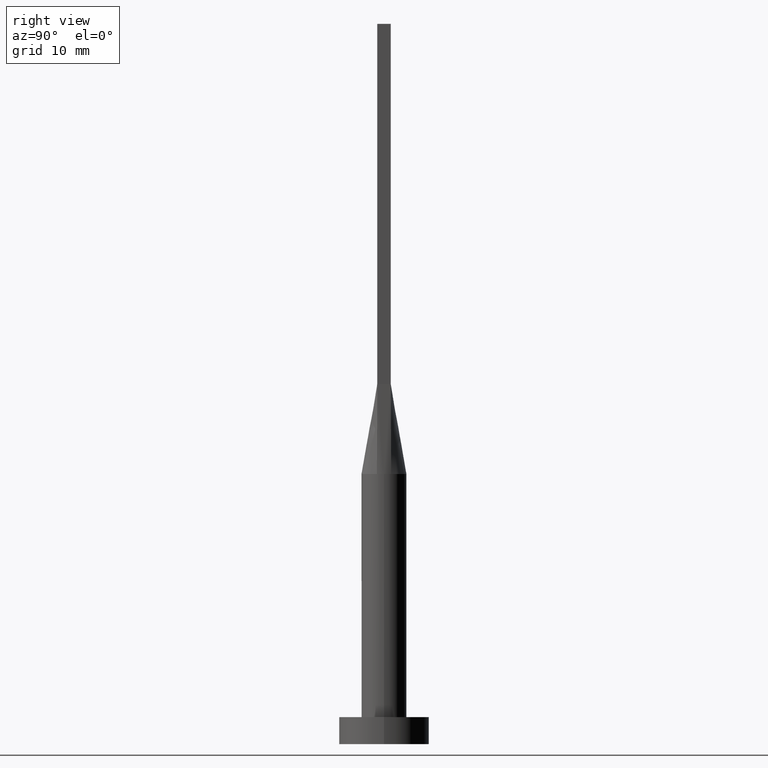
[diagram: clean part render]
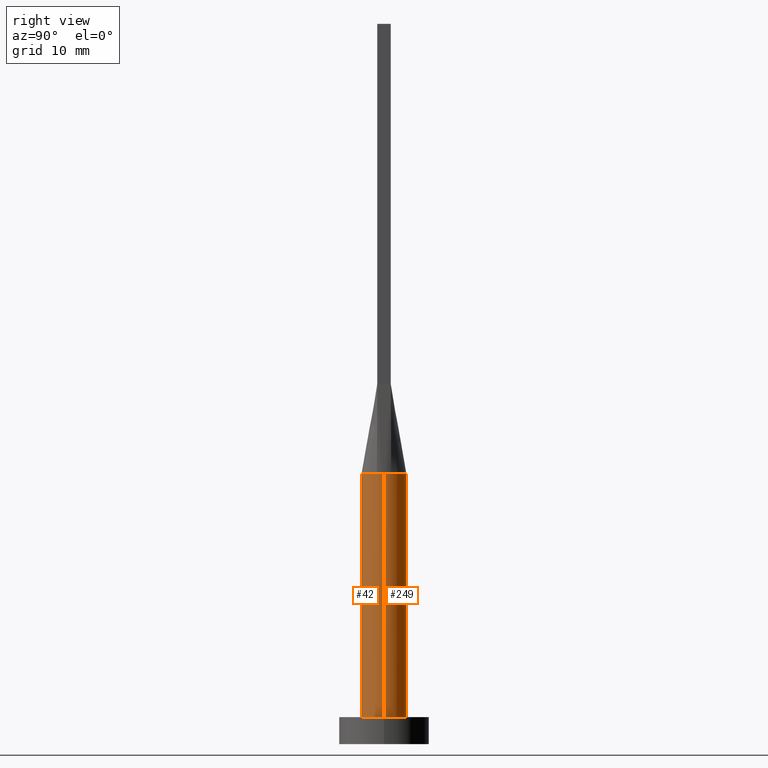
[diagram: same view with one multi-face feature highlighted, each face labeled with its STEP entity id]
A machine part, right view. The highlighted faces form ONE feature: a constant-radius fillet chain: 2 tangent blend faces with common blend radius 2.5 mm. The faces share edges in the B-rep.
Their STEP definitions:
[1] entity #249 (Cylinder):
#12 = CARTESIAN_POINT ( 'NONE',  ( -2.309208245126284975, 0.9780694150420951027, 30.00000000000000355 ) ) ;
#20 = ORIENTED_EDGE ( 'NONE', *, *, #420, .F. ) ;
#26 = AXIS2_PLACEMENT_3D ( 'NONE', #175, #49, #135 ) ;
#33 = VERTEX_POINT ( 'NONE', #131 ) ;
#34 = CARTESIAN_POINT ( 'NONE',  ( -2.500000000000000000, 0.000000000000000000, 3.000000000000000000 ) ) ;
#35 = CARTESIAN_POINT ( 'NONE',  ( 0.6000386972366480443, 2.444291348568451649, 29.99999999999999645 ) ) ;
#38 = VECTOR ( 'NONE', #292, 1000.000000000000000 ) ;
#39 = CARTESIAN_POINT ( 'NONE',  ( -1.799471046981195199, 1.755719709239274229, 30.00000000000001066 ) ) ;
#48 = EDGE_LOOP ( 'NONE', ( #196, #247, #120, #404, #20, #264 ) ) ;
#49 = DIRECTION ( 'NONE',  ( 0.000000000000000000, 0.000000000000000000, 1.000000000000000000 ) ) ;
#51 = EDGE_CURVE ( 'NONE', #97, #438, #396, .T. ) ;
#64 = CIRCLE ( 'NONE', #203, 2.500000000000000000 ) ;
#81 = CARTESIAN_POINT ( 'NONE',  ( 2.309208245126284975, 0.9780694150420948807, 29.99999999999999645 ) ) ;
#87 = DIRECTION ( 'NONE',  ( -0.000000000000000000, -0.000000000000000000, -1.000000000000000000 ) ) ;
#88 = EDGE_CURVE ( 'NONE', #579, #183, #468, .T. ) ;
#92 = CARTESIAN_POINT ( 'NONE',  ( 0.000000000000000000, 0.000000000000000000, 30.00000000000000000 ) ) ;
#97 = VERTEX_POINT ( 'NONE', #265 ) ;
#99 = DIRECTION ( 'NONE',  ( -1.000000000000000000, 0.000000000000000000, 0.000000000000000000 ) ) ;
#110 = AXIS2_PLACEMENT_3D ( 'NONE', #294, #245, #398 ) ;
#120 = ORIENTED_EDGE ( 'NONE', *, *, #220, .T. ) ;
#123 = CARTESIAN_POINT ( 'NONE',  ( 1.799471046981194977, 1.755719709239274007, 30.00000000000000355 ) ) ;
#126 = CARTESIAN_POINT ( 'NONE',  ( -0.3003163416900526128, 2.499999999999999112, 29.99999999999999645 ) ) ;
#131 = CARTESIAN_POINT ( 'NONE',  ( 2.500000000000000000, 3.061616997868383141E-16, 3.000000000000000000 ) ) ;
#135 = DIRECTION ( 'NONE',  ( 1.000000000000000000, 0.000000000000000000, 0.000000000000000000 ) ) ;
#150 = CARTESIAN_POINT ( 'NONE',  ( 2.499999999999999556, 3.110810548879990207E-17, 30.00000000000000000 ) ) ;
#159 = LINE ( 'NONE', #525, #38 ) ;
#167 = CARTESIAN_POINT ( 'NONE',  ( -1.390086206340438890, 2.094828891646495883, 30.00000000000000355 ) ) ;
#175 = CARTESIAN_POINT ( 'NONE',  ( 0.000000000000000000, 0.000000000000000000, 3.000000000000000000 ) ) ;
#183 = VERTEX_POINT ( 'NONE', #184 ) ;
#184 = CARTESIAN_POINT ( 'NONE',  ( -2.371795432964766359, 0.7905989074952441964, 30.00000000000000000 ) ) ;
#196 = ORIENTED_EDGE ( 'NONE', *, *, #375, .F. ) ;
#203 = AXIS2_PLACEMENT_3D ( 'NONE', #92, #402, #407 ) ;
#207 = CARTESIAN_POINT ( 'NONE',  ( -0.6000386972366482663, 2.444291348568452094, 30.00000000000000000 ) ) ;
#213 = CIRCLE ( 'NONE', #110, 2.500000000000000000 ) ;
#220 = EDGE_CURVE ( 'NONE', #33, #438, #439, .T. ) ;
#245 = DIRECTION ( 'NONE',  ( 0.000000000000000000, 0.000000000000000000, 1.000000000000000000 ) ) ;
#246 = CARTESIAN_POINT ( 'NONE',  ( 1.964343640889990361, 1.563766543189047287, 29.99999999999998934 ) ) ;
#247 = ORIENTED_EDGE ( 'NONE', *, *, #545, .T. ) ;
#249 = ADVANCED_FACE ( 'NONE', ( #504 ), #273, .T. ) ;
#254 = CARTESIAN_POINT ( 'NONE',  ( 2.218933079238281980, 1.174882007252000315, 29.99999999999999289 ) ) ;
#262 = CARTESIAN_POINT ( 'NONE',  ( -1.964343640889990805, 1.563766543189048175, 30.00000000000000000 ) ) ;
#264 = ORIENTED_EDGE ( 'NONE', *, *, #88, .F. ) ;
#265 = CARTESIAN_POINT ( 'NONE',  ( -2.500000000000000444, -1.570839010700814298E-16, 30.00000000000000000 ) ) ;
#273 = CYLINDRICAL_SURFACE ( 'NONE', #392, 2.500000000000000000 ) ;
#292 = DIRECTION ( 'NONE',  ( -0.000000000000000000, -0.000000000000000000, -1.000000000000000000 ) ) ;
#294 = CARTESIAN_POINT ( 'NONE',  ( 0.000000000000000000, 0.000000000000000000, 30.00000000000000000 ) ) ;
#309 = CARTESIAN_POINT ( 'NONE',  ( -2.500000000000000000, 0.000000000000000000, 30.00000000000000000 ) ) ;
#318 = CARTESIAN_POINT ( 'NONE',  ( -2.218933079238281536, 1.174882007251999871, 29.99999999999999645 ) ) ;
#328 = VERTEX_POINT ( 'NONE', #150 ) ;
#345 = VECTOR ( 'NONE', #87, 1000.000000000000000 ) ;
#350 = CARTESIAN_POINT ( 'NONE',  ( 1.390086206340439112, 2.094828891646494995, 30.00000000000000355 ) ) ;
#351 = CARTESIAN_POINT ( 'NONE',  ( 2.371772892450305648, 0.7905912578404317159, 30.00000000000000000 ) ) ;
#357 = CARTESIAN_POINT ( 'NONE',  ( 1.145194483530141749, 2.241235424885160921, 30.00000000000000355 ) ) ;
#375 = EDGE_CURVE ( 'NONE', #328, #579, #64, .T. ) ;
#392 = AXIS2_PLACEMENT_3D ( 'NONE', #465, #551, #99 ) ;
#396 = LINE ( 'NONE', #309, #345 ) ;
#398 = DIRECTION ( 'NONE',  ( 1.000000000000000000, 0.000000000000000000, 0.000000000000000000 ) ) ;
#400 = CARTESIAN_POINT ( 'NONE',  ( -1.145194483530141527, 2.241235424885160921, 29.99999999999999645 ) ) ;
#402 = DIRECTION ( 'NONE',  ( 0.000000000000000000, 0.000000000000000000, 1.000000000000000000 ) ) ;
#404 = ORIENTED_EDGE ( 'NONE', *, *, #51, .F. ) ;
#407 = DIRECTION ( 'NONE',  ( 1.000000000000000000, 0.000000000000000000, 0.000000000000000000 ) ) ;
#413 = CARTESIAN_POINT ( 'NONE',  ( -2.371795432964766359, 0.7905989074952441964, 30.00000000000000000 ) ) ;
#420 = EDGE_CURVE ( 'NONE', #183, #97, #213, .T. ) ;
#438 = VERTEX_POINT ( 'NONE', #34 ) ;
#439 = CIRCLE ( 'NONE', #26, 2.500000000000000000 ) ;
#452 = CARTESIAN_POINT ( 'NONE',  ( 0.3003163416900527238, 2.499999999999999556, 30.00000000000000355 ) ) ;
#465 = CARTESIAN_POINT ( 'NONE',  ( 0.000000000000000000, 0.000000000000000000, 30.00000000000000000 ) ) ;
#468 = B_SPLINE_CURVE_WITH_KNOTS ( 'NONE', 3,
 ( #497, #81, #254, #246, #123, #350, #357, #35, #452, #126, #207, #400, #167, #39, #262, #318, #12, #413 ),
 .UNSPECIFIED., .F., .F.,
 ( 4, 2, 2, 2, 2, 2, 2, 2, 4 ),
 ( 0.000000000000000000, 0.1250000000000000000, 0.2500000000000000000, 0.3750000000000000000, 0.5000000000000000000, 0.6250000000000000000, 0.7500000000000000000, 0.8750000000000000000, 1.000000000000000000 ),
 .UNSPECIFIED. ) ;
#497 = CARTESIAN_POINT ( 'NONE',  ( 2.371772892450305648, 0.7905912578404317159, 30.00000000000000000 ) ) ;
#504 = FACE_OUTER_BOUND ( 'NONE', #48, .T. ) ;
#525 = CARTESIAN_POINT ( 'NONE',  ( 2.500000000000000000, 3.061616997868383141E-16, 30.00000000000000000 ) ) ;
#545 = EDGE_CURVE ( 'NONE', #328, #33, #159, .T. ) ;
#551 = DIRECTION ( 'NONE',  ( -0.000000000000000000, -0.000000000000000000, -1.000000000000000000 ) ) ;
#579 = VERTEX_POINT ( 'NONE', #351 ) ;
[2] entity #42 (Cylinder):
#3 = CARTESIAN_POINT ( 'NONE',  ( 2.371798206859841329, -0.7905998626979697796, 30.00000000000000000 ) ) ;
#27 = CARTESIAN_POINT ( 'NONE',  ( 0.000000000000000000, 0.000000000000000000, 30.00000000000000000 ) ) ;
#31 = DIRECTION ( 'NONE',  ( -0.000000000000000000, -0.000000000000000000, -1.000000000000000000 ) ) ;
#33 = VERTEX_POINT ( 'NONE', #131 ) ;
#34 = CARTESIAN_POINT ( 'NONE',  ( -2.500000000000000000, 0.000000000000000000, 3.000000000000000000 ) ) ;
#38 = VECTOR ( 'NONE', #292, 1000.000000000000000 ) ;
#42 = ADVANCED_FACE ( 'NONE', ( #359 ), #492, .T. ) ;
#43 = ORIENTED_EDGE ( 'NONE', *, *, #158, .F. ) ;
#51 = EDGE_CURVE ( 'NONE', #97, #438, #396, .T. ) ;
#52 = DIRECTION ( 'NONE',  ( 0.000000000000000000, 0.000000000000000000, 1.000000000000000000 ) ) ;
#62 = CARTESIAN_POINT ( 'NONE',  ( -2.371775648085652222, -0.7905922034696525325, 30.00000000000000000 ) ) ;
#71 = AXIS2_PLACEMENT_3D ( 'NONE', #27, #127, #258 ) ;
#85 = ORIENTED_EDGE ( 'NONE', *, *, #263, .T. ) ;
#87 = DIRECTION ( 'NONE',  ( -0.000000000000000000, -0.000000000000000000, -1.000000000000000000 ) ) ;
#93 = DIRECTION ( 'NONE',  ( 0.000000000000000000, 0.000000000000000000, 1.000000000000000000 ) ) ;
#97 = VERTEX_POINT ( 'NONE', #265 ) ;
#98 = CIRCLE ( 'NONE', #467, 2.500000000000000000 ) ;
#111 = ORIENTED_EDGE ( 'NONE', *, *, #545, .F. ) ;
#115 = EDGE_LOOP ( 'NONE', ( #111, #484, #160, #43, #556, #85 ) ) ;
#127 = DIRECTION ( 'NONE',  ( 0.000000000000000000, 0.000000000000000000, 1.000000000000000000 ) ) ;
#131 = CARTESIAN_POINT ( 'NONE',  ( 2.500000000000000000, 3.061616997868383141E-16, 3.000000000000000000 ) ) ;
#134 = AXIS2_PLACEMENT_3D ( 'NONE', #461, #52, #217 ) ;
#150 = CARTESIAN_POINT ( 'NONE',  ( 2.499999999999999556, 3.110810548879990207E-17, 30.00000000000000000 ) ) ;
#158 = EDGE_CURVE ( 'NONE', #97, #235, #98, .T. ) ;
#159 = LINE ( 'NONE', #525, #38 ) ;
#160 = ORIENTED_EDGE ( 'NONE', *, *, #555, .F. ) ;
#180 = DIRECTION ( 'NONE',  ( 1.000000000000000000, 0.000000000000000000, 0.000000000000000000 ) ) ;
#199 = AXIS2_PLACEMENT_3D ( 'NONE', #310, #93, #214 ) ;
#214 = DIRECTION ( 'NONE',  ( 1.000000000000000000, -4.440892098500626162E-15, 0.000000000000000000 ) ) ;
#217 = DIRECTION ( 'NONE',  ( 1.000000000000000000, 0.000000000000000000, 0.000000000000000000 ) ) ;
#219 = DIRECTION ( 'NONE',  ( 0.000000000000000000, 0.000000000000000000, 1.000000000000000000 ) ) ;
#235 = VERTEX_POINT ( 'NONE', #62 ) ;
#258 = DIRECTION ( 'NONE',  ( 1.000000000000000000, 0.000000000000000000, 0.000000000000000000 ) ) ;
#263 = EDGE_CURVE ( 'NONE', #438, #33, #289, .T. ) ;
#265 = CARTESIAN_POINT ( 'NONE',  ( -2.500000000000000444, -1.570839010700814298E-16, 30.00000000000000000 ) ) ;
#289 = CIRCLE ( 'NONE', #134, 2.500000000000000000 ) ;
#292 = DIRECTION ( 'NONE',  ( -0.000000000000000000, -0.000000000000000000, -1.000000000000000000 ) ) ;
#306 = AXIS2_PLACEMENT_3D ( 'NONE', #488, #31, #490 ) ;
#309 = CARTESIAN_POINT ( 'NONE',  ( -2.500000000000000000, 0.000000000000000000, 30.00000000000000000 ) ) ;
#310 = CARTESIAN_POINT ( 'NONE',  ( 0.000000000000000000, 0.000000000000000000, 30.00000000000000000 ) ) ;
#328 = VERTEX_POINT ( 'NONE', #150 ) ;
#345 = VECTOR ( 'NONE', #87, 1000.000000000000000 ) ;
#359 = FACE_OUTER_BOUND ( 'NONE', #115, .T. ) ;
#396 = LINE ( 'NONE', #309, #345 ) ;
#417 = CIRCLE ( 'NONE', #71, 2.500000000000000000 ) ;
#438 = VERTEX_POINT ( 'NONE', #34 ) ;
#461 = CARTESIAN_POINT ( 'NONE',  ( 0.000000000000000000, 0.000000000000000000, 3.000000000000000000 ) ) ;
#467 = AXIS2_PLACEMENT_3D ( 'NONE', #500, #219, #180 ) ;
#484 = ORIENTED_EDGE ( 'NONE', *, *, #565, .F. ) ;
#488 = CARTESIAN_POINT ( 'NONE',  ( 0.000000000000000000, 0.000000000000000000, 30.00000000000000000 ) ) ;
#490 = DIRECTION ( 'NONE',  ( -1.000000000000000000, 0.000000000000000000, 0.000000000000000000 ) ) ;
#492 = CYLINDRICAL_SURFACE ( 'NONE', #306, 2.500000000000000000 ) ;
#500 = CARTESIAN_POINT ( 'NONE',  ( 0.000000000000000000, 0.000000000000000000, 30.00000000000000000 ) ) ;
#525 = CARTESIAN_POINT ( 'NONE',  ( 2.500000000000000000, 3.061616997868383141E-16, 30.00000000000000000 ) ) ;
#530 = CIRCLE ( 'NONE', #199, 2.500000000000000000 ) ;
#545 = EDGE_CURVE ( 'NONE', #328, #33, #159, .T. ) ;
#555 = EDGE_CURVE ( 'NONE', #235, #572, #417, .T. ) ;
#556 = ORIENTED_EDGE ( 'NONE', *, *, #51, .T. ) ;
#565 = EDGE_CURVE ( 'NONE', #572, #328, #530, .T. ) ;
#572 = VERTEX_POINT ( 'NONE', #3 ) ;